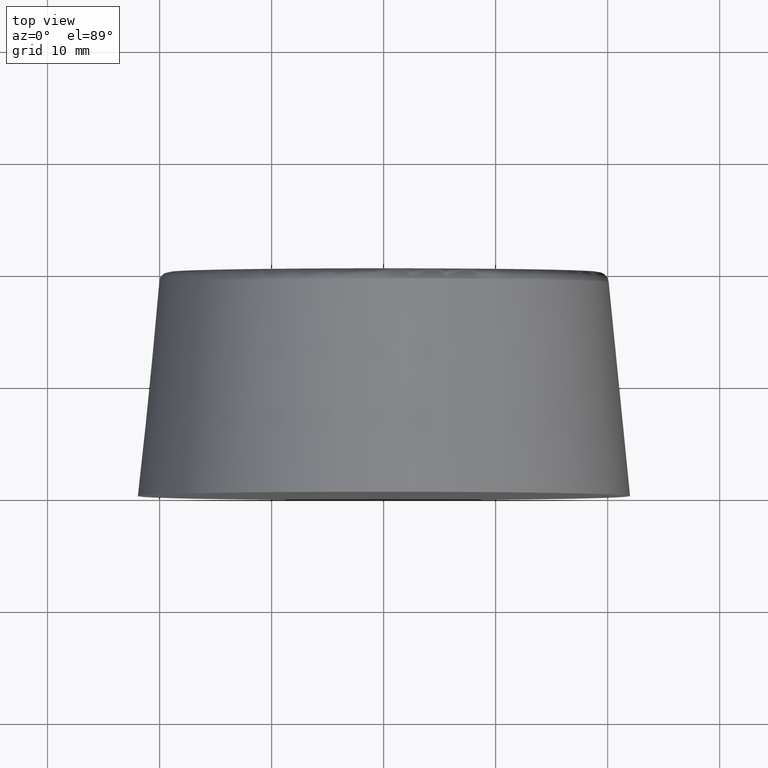
[diagram: clean part render]
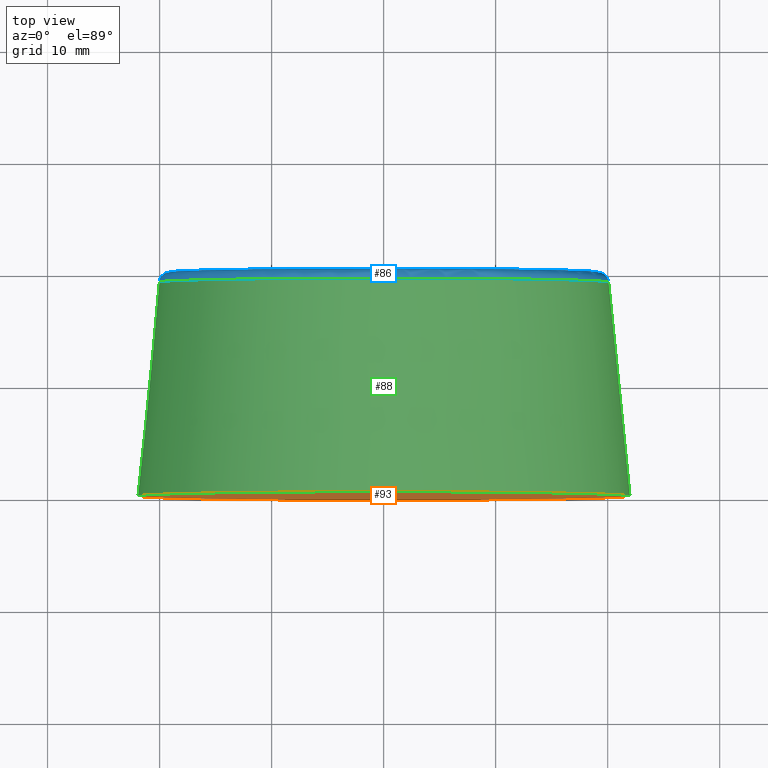
[diagram: same view with three faces highlighted in distinct colors, each labeled with its STEP entity id]
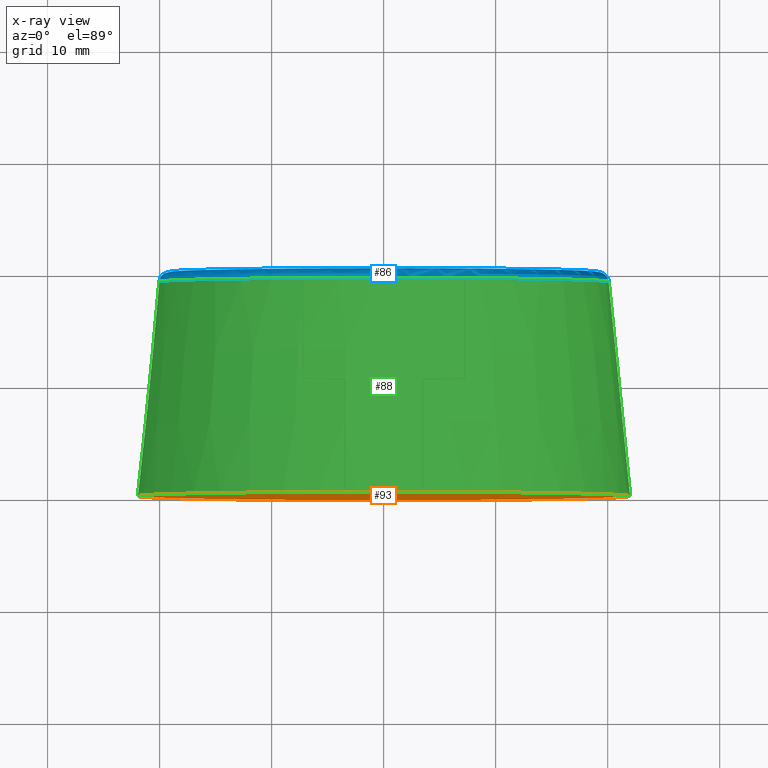
[diagram: x-ray of the same camera — body ghosted, the three highlighted faces saturated]
A machine part, top view with three faces highlighted in distinct colors.
The next image is the same camera in x-ray (body ghosted, the three faces saturated) — at least one of them is partly hidden behind the body in this view.
Their STEP definitions:

[orange] entity #93 — the highlighted planar face has unit normal (0, 1, 0).
#21=PLANE('',#110);
#35=FACE_OUTER_BOUND('',#49,.T.);
#49=EDGE_LOOP('',(#84));
#53=CIRCLE('',#102,22.);
#60=VERTEX_POINT('',#153);
#67=EDGE_CURVE('',#60,#60,#53,.T.);
#84=ORIENTED_EDGE('',*,*,#67,.F.);
#93=ADVANCED_FACE('',(#35),#21,.F.);
#102=AXIS2_PLACEMENT_3D('',#154,#125,#126);
#110=AXIS2_PLACEMENT_3D('',#165,#141,#142);
#125=DIRECTION('center_axis',(0.,1.,0.));
#126=DIRECTION('ref_axis',(1.,0.,0.));
#141=DIRECTION('center_axis',(0.,1.,0.));
#142=DIRECTION('ref_axis',(0.,0.,1.));
#153=CARTESIAN_POINT('',(22.,0.,0.));
#154=CARTESIAN_POINT('Origin',(0.,0.,0.));
#165=CARTESIAN_POINT('Origin',(0.,0.,0.));

[blue] entity #86 — the highlighted toroidal blend (fillet) surface has major radius 19.095 mm and minor (blend) radius 1 mm.
#22=FACE_BOUND('',#37,.T.);
#28=FACE_OUTER_BOUND('',#36,.T.);
#36=EDGE_LOOP('',(#71));
#37=EDGE_LOOP('',(#72));
#50=CIRCLE('',#97,19.0950124378879);
#51=CIRCLE('',#98,20.0900496280979);
#57=VERTEX_POINT('',#145);
#58=VERTEX_POINT('',#147);
#64=EDGE_CURVE('',#57,#57,#50,.T.);
#65=EDGE_CURVE('',#58,#58,#51,.T.);
#71=ORIENTED_EDGE('',*,*,#64,.T.);
#72=ORIENTED_EDGE('',*,*,#65,.T.);
#85=TOROIDAL_SURFACE('',#96,19.0950124378879,1.);
#86=ADVANCED_FACE('',(#28,#22),#85,.T.);
#96=AXIS2_PLACEMENT_3D('',#144,#113,#114);
#97=AXIS2_PLACEMENT_3D('',#146,#115,#116);
#98=AXIS2_PLACEMENT_3D('',#148,#117,#118);
#113=DIRECTION('center_axis',(0.,-1.,0.));
#114=DIRECTION('ref_axis',(0.,0.,-1.));
#115=DIRECTION('center_axis',(0.,-1.,0.));
#116=DIRECTION('ref_axis',(-1.,0.,1.22464679914735E-16));
#117=DIRECTION('center_axis',(0.,1.,0.));
#118=DIRECTION('ref_axis',(-1.,0.,1.22464679914735E-16));
#144=CARTESIAN_POINT('Origin',(0.,19.,0.));
#145=CARTESIAN_POINT('',(19.0950124378879,20.,0.));
#146=CARTESIAN_POINT('Origin',(0.,20.,0.));
#147=CARTESIAN_POINT('',(20.0900496280979,19.099503719021,-4.92064299435231E-15));
#148=CARTESIAN_POINT('Origin',(0.,19.099503719021,0.));

[green] entity #88 — the highlighted conical surface has half-angle 5.711 deg.
#17=CONICAL_SURFACE('',#101,22.,5.71059313749965);
#24=FACE_BOUND('',#41,.T.);
#30=FACE_OUTER_BOUND('',#40,.T.);
#40=EDGE_LOOP('',(#75));
#41=EDGE_LOOP('',(#76));
#51=CIRCLE('',#98,20.0900496280979);
#53=CIRCLE('',#102,22.);
#58=VERTEX_POINT('',#147);
#60=VERTEX_POINT('',#153);
#65=EDGE_CURVE('',#58,#58,#51,.T.);
#67=EDGE_CURVE('',#60,#60,#53,.T.);
#75=ORIENTED_EDGE('',*,*,#67,.T.);
#76=ORIENTED_EDGE('',*,*,#65,.F.);
#88=ADVANCED_FACE('',(#30,#24),#17,.T.);
#98=AXIS2_PLACEMENT_3D('',#148,#117,#118);
#101=AXIS2_PLACEMENT_3D('',#152,#123,#124);
#102=AXIS2_PLACEMENT_3D('',#154,#125,#126);
#117=DIRECTION('center_axis',(0.,1.,0.));
#118=DIRECTION('ref_axis',(-1.,0.,1.22464679914735E-16));
#123=DIRECTION('center_axis',(0.,-1.,0.));
#124=DIRECTION('ref_axis',(1.,0.,0.));
#125=DIRECTION('center_axis',(0.,1.,0.));
#126=DIRECTION('ref_axis',(1.,0.,0.));
#147=CARTESIAN_POINT('',(20.0900496280979,19.099503719021,-4.92064299435231E-15));
#148=CARTESIAN_POINT('Origin',(0.,19.099503719021,0.));
#152=CARTESIAN_POINT('Origin',(0.,0.,0.));
#153=CARTESIAN_POINT('',(22.,0.,0.));
#154=CARTESIAN_POINT('Origin',(0.,0.,0.));